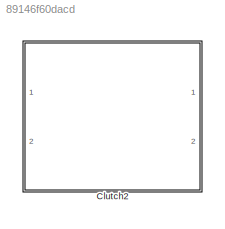
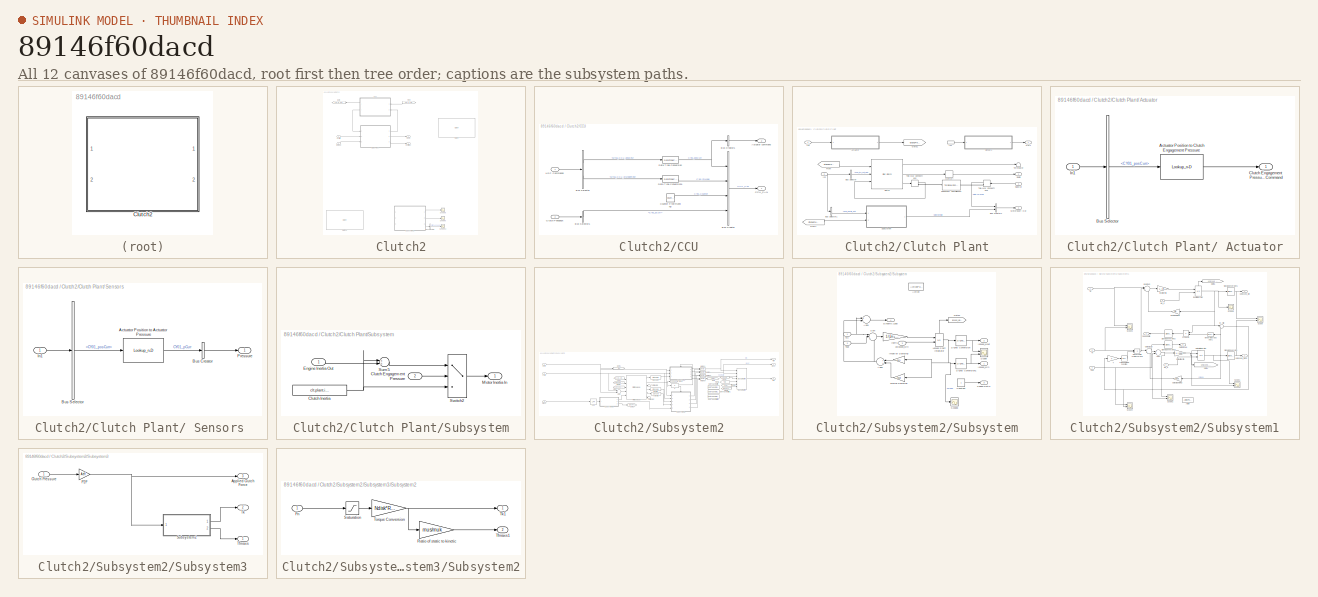
[diagram: thumbnail index - all 12 canvases of the model, root first then tree order]
MODEL slx_89146f60dacd
KIND library
CONFIG AbsTol = auto
CONFIG EnableMultiTasking = off
CONFIG FixedStep = auto
CONFIG MaxStep = auto
CONFIG MinStep = auto
CONFIG RelTol = 1e-3
CONFIG SampleTimeConstraint = Unconstrained
CONFIG Solver = VariableStepAuto
CONFIG SolverName = VariableStepAuto
CONFIG StartTime = 0.0
CONFIG StopTime = 10.0
BLOCK [SubSystem] Clutch2
  AncestorBlock = lib_Clutch_Final/Clutch
  Ports = [2, 2]
  RequestExecContextInheritance = off
  Variant = off
BLOCK [BusSelector] Clutch2/Bus Selector2
  Commented = on
  OutputAsBus = off
  OutputSignals = Cltch.CltchLocked
  Ports = [1, 1]
BLOCK [SubSystem] Clutch2/CCU
  Ports = [2, 2]
  RequestExecContextInheritance = off
  Variant = off
BLOCK [Outport] Clutch2/CCU/Actuator command 
  IconDisplay = Port number
  Port = 2
BLOCK [BusCreator] Clutch2/CCU/Bus Creator
  DisplayOption = bar
  InheritFromInputs = on
  Inputs = 4
  Ports = [4, 1]
BLOCK [BusCreator] Clutch2/CCU/Bus Creator1
  DisplayOption = bar
  InheritFromInputs = on
  Inputs = 1
  Ports = [1, 1]
BLOCK [BusSelector] Clutch2/CCU/Bus Selector
  OutputAsBus = off
  OutputSignals = MY15_CCU_posDes,MY15_CCU_stModeReq
  Ports = [1, 2]
BLOCK [BusSelector] Clutch2/CCU/Bus Selector1
  OutputAsBus = off
  OutputSignals = CY01_pCurr
  Ports = [1, 1]
BLOCK [Outport] Clutch2/CCU/CCU_CAN 
  IconDisplay = Port number
BLOCK [Inport] Clutch2/CCU/Clutch Feedback
  IconDisplay = Port number
  Port = 2
BLOCK [Reference] Clutch2/CCU/Counter Free-Running  REF=simulink/Sources/Counter
Free-Running
  Ports = [0, 1]
  SourceBlock = simulink/Sources/Counter\nFree-Running
  SourceProductBaseCode = SL
  SourceProductName = Simulink
  SourceType = Counter Free-Running
BLOCK [DataTypeConversion] Clutch2/CCU/Data Type Conversion
  RndMeth = Floor
  SaturateOnIntegerOverflow = off
BLOCK [DataTypeConversion] Clutch2/CCU/Data Type Conversion1
  RndMeth = Floor
  SaturateOnIntegerOverflow = off
BLOCK [Inport] Clutch2/CCU/HSC Commands
  IconDisplay = Port number
BLOCK [Reference] Clutch2/Clutch  REF=lib_Clutch_2017a/Clutch
  Commented = on
  Ports = [4, 2]
  SourceBlock = lib_Clutch_2017a/Clutch
BLOCK [SubSystem] Clutch2/Clutch Plant
  Ports = [3, 3]
  RequestExecContextInheritance = off
  Variant = off
BLOCK [SubSystem] Clutch2/Clutch Plant/ Actuator
  Ports = [1, 1]
  RequestExecContextInheritance = off
  Variant = off
BLOCK [Lookup_n-D] Clutch2/Clutch Plant/ Actuator/Actuator Position to Clutch Engagement Pressure
  BreakpointsForDimension1 = [0\n100\n200\n300\n400\n500\n600\n700\n800\n900\n1000\n1100\n1200\n1300\n1400\n1500\n1600\n1700\n1800\n1900\n2000\n2100\n2200\n2300\n2400\n2500\n2600\n2700\n2800\n2900\n3000\n3100\n3200\n3300\n3400\n3500\n3600\n3700\n3800\n3900\n4000\n4100\n4200\n4300\n4400\n4500\n4600\n4700\n4800\n4900\n5000\n5100\n5200\n5300\n5400\n5500\n5600\n5700\n5800\n5900\n6000\n6100\n6200\n6300\n6400\n\n]
  InternalRulePriority = Speed
  NumberOfTableDimensions = 1
  Ports = [1, 1]
  RndMeth = Simplest
  Table = [892800\n892800\n892800\n833280\n773760\n714240\n654720\n595200\n535680\n476160\n416640\n357120\n297600\n238080\n178560\n119040\n59520\n0\n0\n0\n0\n0\n0\n0\n0\n0\n0\n0\n0\n0\n0\n0\n0\n0\n0\n0\n0\n0\n0\n0\n0\n0\n0\n0\n0\n0\n0\n0\n0\n0\n0\n0\n0\n0\n0\n0\n0\n0\n0\n0\n0\n0\n0\n0\n0\n\n\n]
BLOCK [BusSelector] Clutch2/Clutch Plant/ Actuator/Bus Selector
  OutputAsBus = off
  OutputSignals = CY01_posCurr
  Ports = [1, 1]
BLOCK [Outport] Clutch2/Clutch Plant/ Actuator/Clutch Engagement Pressure Command
  IconDisplay = Port number
BLOCK [Inport] Clutch2/Clutch Plant/ Actuator/In1
  IconDisplay = Port number
BLOCK [SubSystem] Clutch2/Clutch Plant/ Sensors 
  Ports = [1, 1]
  RequestExecContextInheritance = off
  Variant = off
BLOCK [Lookup_n-D] Clutch2/Clutch Plant/ Sensors /Actuator Position to Actuator Pressure
  BreakpointsForDimension1 = [0\n300\n400\n500\n600\n700\n800\n900\n1000\n1100\n1200\n1300\n1400\n1500\n1600\n1700\n1800\n1900\n2000\n2100\n2200\n2300\n2400\n2500\n2600\n2700\n2800\n2900\n3000\n3100\n3200\n3300\n3400\n3500\n3600\n3700\n3800\n3900\n4000\n4100\n4200\n4300\n4400\n4500\n4600\n4650\n]
  InternalRulePriority = Speed
  NumberOfTableDimensions = 1
  Ports = [1, 1]
  RndMeth = Simplest
  Table = [0.4\n1.2\n2.6\n4\n5.6\n6.8\n8.6\n10.4\n12.2\n14\n15.8\n17.4\n18.8\n19.6\n20.2\n20\n19.8\n19.6\n19\n18.8\n18.4\n18\n17.8\n17.6\n17.4\n17.2\n17\n16.8\n16.6\n16.6\n16.6\n16.8\n17\n17.2\n17.4\n17.8\n18\n18.4\n18.6\n19\n19.4\n20.4\n21.2\n25.4\n36.4\n41\n]
BLOCK [BusCreator] Clutch2/Clutch Plant/ Sensors /Bus Creator
  DisplayOption = bar
  InheritFromInputs = on
  Inputs = 1
  Ports = [1, 1]
BLOCK [BusSelector] Clutch2/Clutch Plant/ Sensors /Bus Selector
  OutputAsBus = off
  OutputSignals = CY01_posCurr
  Ports = [1, 1]
BLOCK [Inport] Clutch2/Clutch Plant/ Sensors /In1
  IconDisplay = Port number
BLOCK [Outport] Clutch2/Clutch Plant/ Sensors /Pressure
  IconDisplay = Port number
BLOCK [BusCreator] Clutch2/Clutch Plant/Bus Creator1
  DisplayOption = bar
  InheritFromInputs = on
  Inputs = 2
  Ports = [2, 1]
BLOCK [BusSelector] Clutch2/Clutch Plant/Bus Selector
  OutputAsBus = off
  OutputSignals = eng_trq_out_Nm
  Ports = [1, 1]
BLOCK [BusSelector] Clutch2/Clutch Plant/Bus Selector1
  OutputAsBus = off
  OutputSignals = eng_inertia_out
  Ports = [1, 1]
BLOCK [Reference] Clutch2/Clutch Plant/Clutch  REF=autolibcoupling/Disc Clutch
  Ports = [3, 3]
  SourceBlock = autolibcoupling/Disc Clutch
  SourceProductBaseCode = PW
  SourceProductName = Powertrain Blockset
  SourceType = Disc Clutch
BLOCK [Reference] Clutch2/Clutch Plant/Driveshaft Compliance1  REF=autolibcoupling/Torsional Compliance
  Ports = [0, 0, 0, 0, 0, 1, 1]
  SourceBlock = autolibcoupling/Torsional Compliance
  SourceProductName = Powertrain Blockset
  SourceType = Torsional Compliance
BLOCK [From] Clutch2/Clutch Plant/From
  GotoTag = CltEngPressCmd
  TagVisibility = global
BLOCK [From] Clutch2/Clutch Plant/From1
  GotoTag = CltEngPressCmd
  TagVisibility = global
BLOCK [Goto] Clutch2/Clutch Plant/Goto1
  GotoTag = CltEngPressCmd
  TagVisibility = global
BLOCK [Inport] Clutch2/Clutch Plant/In1
  IconDisplay = Port number
BLOCK [Inport] Clutch2/Clutch Plant/In2
  IconDisplay = Port number
  Port = 2
BLOCK [InportShadow] Clutch2/Clutch Plant/In4
  IconDisplay = Port number
BLOCK [Memory] Clutch2/Clutch Plant/Memory
BLOCK [Outport] Clutch2/Clutch Plant/MotorShaft Out
  IconDisplay = Port number
  Port = 3
BLOCK [Outport] Clutch2/Clutch Plant/Out1
  IconDisplay = Port number
BLOCK [Inport] Clutch2/Clutch Plant/SpdOut
  IconDisplay = Port number
  Port = 3
BLOCK [Outport] Clutch2/Clutch Plant/Spdin
  IconDisplay = Port number
  Port = 2
BLOCK [SubSystem] Clutch2/Clutch Plant/Subsystem
  Ports = [2, 1]
  RequestExecContextInheritance = off
  Variant = off
BLOCK [Inport] Clutch2/Clutch Plant/Subsystem/Clutch Engagement Pressure
  IconDisplay = Port number
  Port = 2
BLOCK [Constant] Clutch2/Clutch Plant/Subsystem/Clutch Inertia
  Value = clt.plant.init.inertia
BLOCK [Inport] Clutch2/Clutch Plant/Subsystem/Engine Inertia Out
  IconDisplay = Port number
BLOCK [Outport] Clutch2/Clutch Plant/Subsystem/Motor Inertia In
  IconDisplay = Port number
BLOCK [Sum] Clutch2/Clutch Plant/Subsystem/Sum5
  IconShape = round
  Inputs = ++|
  Ports = [2, 1]
BLOCK [Switch] Clutch2/Clutch Plant/Subsystem/Switch2
  Criteria = u2 > Threshold
BLOCK [Terminator] Clutch2/Clutch Plant/Terminator
BLOCK [TwoWayConnection] Clutch2/Clutch Plant/Two-Way Connection2
  Ports = [1, 1, 0, 0, 0, 0, 1]
BLOCK [TwoWayConnection] Clutch2/Clutch Plant/Two-Way Connection3
  Ports = [1, 1, 0, 0, 0, 0, 1]
BLOCK [Reference] Clutch2/Clutch1  REF=lib_Clutch/Clutch
  Commented = on
  Ports = [4, 2]
  SourceBlock = lib_Clutch/Clutch
BLOCK [From] Clutch2/From
  GotoTag = HCU_to_EBCAN
  TagVisibility = global
BLOCK [Goto] Clutch2/Goto
  GotoTag = CCU_to_HCU
  TagVisibility = global
BLOCK [Inport] Clutch2/MotSpd
  IconDisplay = Port number
  Port = 2
BLOCK [Scope] Clutch2/Scope10
  Commented = on
  NumInputPorts = 1
  Ports = [1]
  ScopeSpecificationString = Simulink.scopes.TimeScopeBlockCfg('CurrentConfiguration', extmgr.ConfigurationSet(extmgr.Configuration('Core','General UI',true),extmgr.Configuration('Core','Source UI',true),extmgr.Configuration('Sources','WiredSimulink',true,'DataLoggingVariableName','ScopeData5'),extmgr.Configuration('Visuals','Time Domain',true,'SerializedDisplays',{struct('MinYLimReal','-0.125','MaxYLimReal','1.125','YLabelRe...<+1360ch>
BLOCK [Scope] Clutch2/Scope8
  Commented = on
  NumInputPorts = 1
  Ports = [1]
  ScopeSpecificationString = Simulink.scopes.TimeScopeBlockCfg('CurrentConfiguration', extmgr.ConfigurationSet(extmgr.Configuration('Core','General UI',true),extmgr.Configuration('Core','Source UI',true),extmgr.Configuration('Sources','WiredSimulink',true,'DataLoggingVariableName','ScopeData3'),extmgr.Configuration('Visuals','Time Domain',true,'SerializedDisplays',{struct('MinYLimReal','-0.12495','MaxYLimReal','1.12458','YLab...<+1446ch>
BLOCK [Scope] Clutch2/Scope9
  Commented = on
  NumInputPorts = 1
  Ports = [1]
  ScopeSpecificationString = Simulink.scopes.TimeScopeBlockCfg('CurrentConfiguration', extmgr.ConfigurationSet(extmgr.Configuration('Core','General UI',true),extmgr.Configuration('Core','Source UI',true),extmgr.Configuration('Sources','WiredSimulink',true,'DataLoggingVariableName','ScopeData4'),extmgr.Configuration('Visuals','Time Domain',true,'SerializedDisplays',{struct('MinYLimReal','-95.10978','MaxYLimReal','587.15369','Y...<+1409ch>
BLOCK [Inport] Clutch2/ShaftIn
  IconDisplay = Port number
BLOCK [Outport] Clutch2/ShaftOut
  IconDisplay = Port number
BLOCK [Outport] Clutch2/SpdIn
  IconDisplay = Port number
  Port = 2
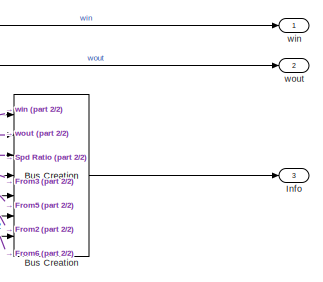
[diagram: Clutch2/Subsystem2 - part 1/2, middle right region]
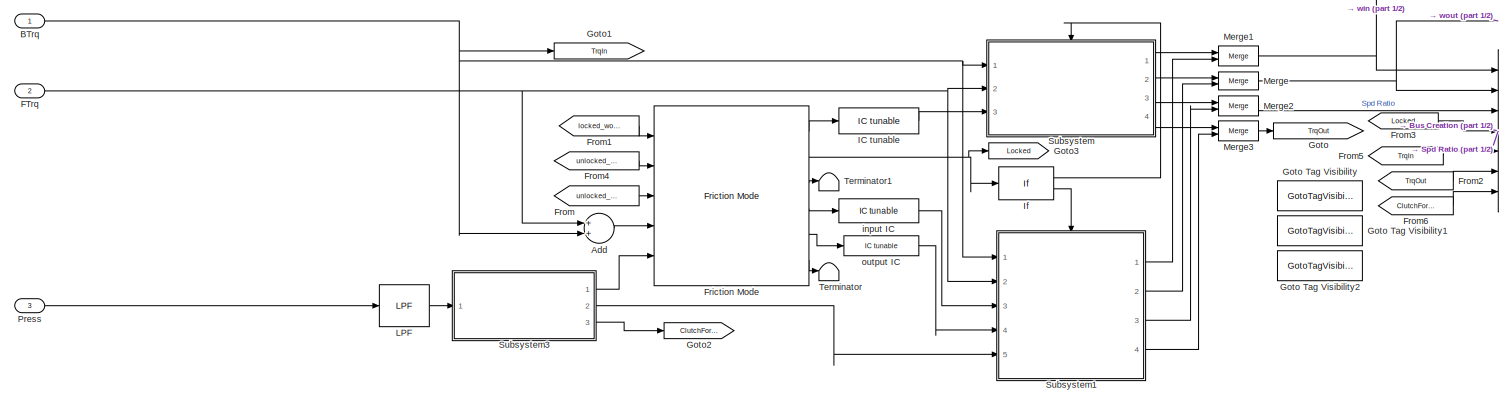
[diagram: Clutch2/Subsystem2 - part 2/2, most of the canvas]
BLOCK [SubSystem] Clutch2/Subsystem2
  Commented = on
  Ports = [3, 3]
  RequestExecContextInheritance = off
  Variant = off
BLOCK [Sum] Clutch2/Subsystem2/Add
  InputSameDT = off
  OutDataTypeStr = Inherit: Inherit via internal rule
  Ports = [2, 1]
  SaturateOnIntegerOverflow = off
BLOCK [Inport] Clutch2/Subsystem2/BTrq
  IconDisplay = Port number
BLOCK [Reference] Clutch2/Subsystem2/Bus Creation  REF=autolibdrivetraincommon/Dry Clutch/Bus Creation
  Ports = [7, 1]
  SourceBlock = autolibdrivetraincommon/Dry Clutch/Bus Creation
  SourceProductBaseCode = PW
  SourceProductName = Powertrain Blockset
  SourceType = SubSystem
BLOCK [Inport] Clutch2/Subsystem2/FTrq
  IconDisplay = Port number
  Port = 2
BLOCK [Reference] Clutch2/Subsystem2/Friction Mode  REF=autolibdrivetraincommon/Dry Clutch/Friction Mode
  Ports = [5, 6]
  SourceBlock = autolibdrivetraincommon/Dry Clutch/Friction Mode
  SourceProductBaseCode = PW
  SourceProductName = Powertrain Blockset
  SourceType = SubSystem
BLOCK [From] Clutch2/Subsystem2/From
  GotoTag = unlocked_win
  TagVisibility = scoped
BLOCK [From] Clutch2/Subsystem2/From1
  GotoTag = locked_wout
  TagVisibility = scoped
BLOCK [From] Clutch2/Subsystem2/From2
  GotoTag = TrqOut
BLOCK [From] Clutch2/Subsystem2/From3
  GotoTag = Locked
BLOCK [From] Clutch2/Subsystem2/From4
  GotoTag = unlocked_wout
  TagVisibility = scoped
BLOCK [From] Clutch2/Subsystem2/From5
  GotoTag = TrqIn
BLOCK [From] Clutch2/Subsystem2/From6
  GotoTag = ClutchForce
BLOCK [Goto] Clutch2/Subsystem2/Goto
  GotoTag = TrqOut
BLOCK [GotoTagVisibility] Clutch2/Subsystem2/Goto Tag Visibility
  GotoTag = locked_wout
BLOCK [GotoTagVisibility] Clutch2/Subsystem2/Goto Tag Visibility1
  GotoTag = unlocked_wout
BLOCK [GotoTagVisibility] Clutch2/Subsystem2/Goto Tag Visibility2
  GotoTag = unlocked_win
BLOCK [Goto] Clutch2/Subsystem2/Goto1
  GotoTag = TrqIn
BLOCK [Goto] Clutch2/Subsystem2/Goto2
  GotoTag = ClutchForce
BLOCK [Goto] Clutch2/Subsystem2/Goto3
  GotoTag = Locked
BLOCK [Reference] Clutch2/Subsystem2/IC tunable  REF=autolibutils/IC tunable
  Ports = [1, 1]
  SourceBlock = autolibutils/IC tunable
  SourceProductBaseCode = PW
  SourceProductName = Powertrain Blockset
  SourceType = Initial Condition - Tunable
BLOCK [If] Clutch2/Subsystem2/If
  IfExpression = u1 ~= 0
  Ports = [1, 2]
BLOCK [Outport] Clutch2/Subsystem2/Info
  IconDisplay = Port number
  Port = 3
BLOCK [Reference] Clutch2/Subsystem2/LPF  REF=autolibdrivetraincommon/Dry Clutch/LPF
  Ports = [1, 1]
  SourceBlock = autolibdrivetraincommon/Dry Clutch/LPF
  SourceProductBaseCode = PW
  SourceProductName = Powertrain Blockset
  SourceType = SubSystem
BLOCK [Merge] Clutch2/Subsystem2/Merge
  Ports = [2, 1]
BLOCK [Merge] Clutch2/Subsystem2/Merge1
  Ports = [2, 1]
BLOCK [Merge] Clutch2/Subsystem2/Merge2
  Ports = [2, 1]
BLOCK [Merge] Clutch2/Subsystem2/Merge3
  Ports = [2, 1]
BLOCK [Inport] Clutch2/Subsystem2/Press
  IconDisplay = Port number
  Port = 3
BLOCK [SubSystem] Clutch2/Subsystem2/Subsystem
  Ports = [3, 4, 0, 0, 0, 0, 0, 1]
  RequestExecContextInheritance = off
  Variant = off
BLOCK [ActionPort] Clutch2/Subsystem2/Subsystem/Action
  InitializeStates = reset
BLOCK [Sum] Clutch2/Subsystem2/Subsystem/Add1
  InputSameDT = off
  Inputs = +-
  OutDataTypeStr = Inherit: Inherit via internal rule
  Ports = [2, 1]
  SaturateOnIntegerOverflow = off
BLOCK [Sum] Clutch2/Subsystem2/Subsystem/Add2
  InputSameDT = off
  OutDataTypeStr = Inherit: Inherit via internal rule
  Ports = [2, 1]
  SaturateOnIntegerOverflow = off
BLOCK [Constant] Clutch2/Subsystem2/Subsystem/Constant
BLOCK [Outport] Clutch2/Subsystem2/Subsystem/Dynamic Load
  IconDisplay = Port number
  InitialOutput = 0
  Port = 4
BLOCK [Goto] Clutch2/Subsystem2/Subsystem/Goto4
  GotoTag = locked_wout
  TagVisibility = scoped
BLOCK [Gain] Clutch2/Subsystem2/Subsystem/Impeller Damping
  Gain = bin
BLOCK [Gain] Clutch2/Subsystem2/Subsystem/Inertia
  Gain = 1/(Jin+Jout)
BLOCK [Integrator] Clutch2/Subsystem2/Subsystem/Locked Shaft Integrator
  InitialConditionSource = external
  LimitOutput = on
  LowerSaturationLimit = -maxAbsSpd
  Ports = [2, 1, 0, 0, 1]
  ShowStatePort = on
  UpperSaturationLimit = maxAbsSpd
  ZeroCross = off
BLOCK [Scope] Clutch2/Subsystem2/Subsystem/Scope
  NumInputPorts = 2
  Ports = [2]
  ScopeSpecificationString = Simulink.scopes.TimeScopeBlockCfg('CurrentConfiguration', extmgr.ConfigurationSet(extmgr.Configuration('Core','General UI',true),extmgr.Configuration('Core','Source UI',true),extmgr.Configuration('Sources','WiredSimulink',true,'DataLoggingVariableName','ScopeData3'),extmgr.Configuration('Visuals','Time Domain',true,'SerializedDisplays',{struct('MinYLimReal','-0.12787','MaxYLimReal','1.15082','YLab...<+2085ch>
BLOCK [Scope] Clutch2/Subsystem2/Subsystem/Scope8
  NumInputPorts = 1
  Ports = [1]
  ScopeSpecificationString = Simulink.scopes.TimeScopeBlockCfg('CurrentConfiguration', extmgr.ConfigurationSet(extmgr.Configuration('Core','General UI',true),extmgr.Configuration('Core','Source UI',true),extmgr.Configuration('Sources','WiredSimulink',true,'DataLoggingVariableName','ScopeData1'),extmgr.Configuration('Visuals','Time Domain',true),extmgr.Configuration('Tools','Plot Navigation',true),extmgr.Configuration('Tools',...<+40ch>
BLOCK [SignalConversion] Clutch2/Subsystem2/Subsystem/Signal Conversion
  OverrideOpt = off
BLOCK [SignalConversion] Clutch2/Subsystem2/Subsystem/Signal Conversion1
  OverrideOpt = off
BLOCK [Outport] Clutch2/Subsystem2/Subsystem/Speed Ratio
  IconDisplay = Port number
  InitialOutput = 1
  Port = 3
BLOCK [Sum] Clutch2/Subsystem2/Subsystem/Sum
  IconShape = round
  Inputs = ||++-
  Ports = [3, 1]
BLOCK [Inport] Clutch2/Subsystem2/Subsystem/Tin
  IconDisplay = Port number
BLOCK [Inport] Clutch2/Subsystem2/Subsystem/Tout
  IconDisplay = Port number
  Port = 2
BLOCK [Gain] Clutch2/Subsystem2/Subsystem/Turbine Damping
  Gain = bout
BLOCK [Outport] Clutch2/Subsystem2/Subsystem/locked_win
  IconDisplay = Port number
  InitialOutput = win_o
BLOCK [Outport] Clutch2/Subsystem2/Subsystem/locked_wout
  IconDisplay = Port number
  InitialOutput = win_o
  Port = 2
BLOCK [Inport] Clutch2/Subsystem2/Subsystem/unlocked_win
  IconDisplay = Port number
  Port = 3
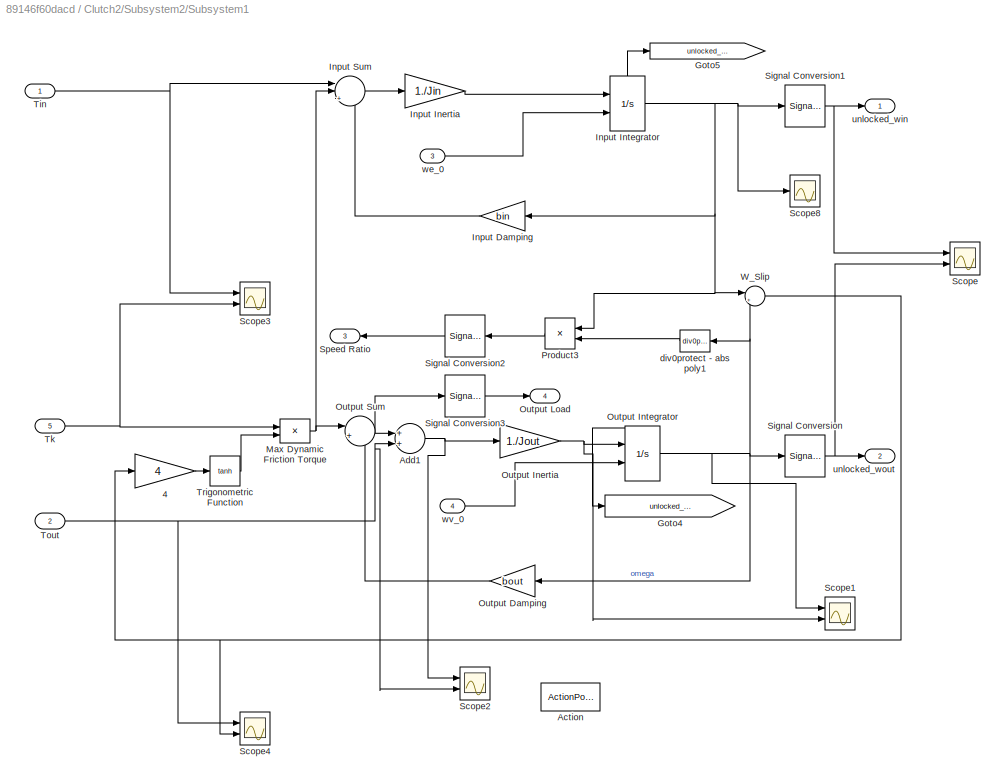
BLOCK [SubSystem] Clutch2/Subsystem2/Subsystem1
  Ports = [5, 4, 0, 0, 0, 0, 0, 1]
  RequestExecContextInheritance = off
  Variant = off
BLOCK [Gain] Clutch2/Subsystem2/Subsystem1/4
  Gain = 4
BLOCK [ActionPort] Clutch2/Subsystem2/Subsystem1/Action
  InitializeStates = reset
BLOCK [Sum] Clutch2/Subsystem2/Subsystem1/Add1
  InputSameDT = off
  OutDataTypeStr = Inherit: Inherit via internal rule
  Ports = [2, 1]
  SaturateOnIntegerOverflow = off
BLOCK [Goto] Clutch2/Subsystem2/Subsystem1/Goto4
  GotoTag = unlocked_wout
  TagVisibility = scoped
BLOCK [Goto] Clutch2/Subsystem2/Subsystem1/Goto5
  GotoTag = unlocked_win
  TagVisibility = scoped
BLOCK [Gain] Clutch2/Subsystem2/Subsystem1/Input Damping
  Gain = bin
BLOCK [Gain] Clutch2/Subsystem2/Subsystem1/Input Inertia
  Gain = 1./Jin
BLOCK [Integrator] Clutch2/Subsystem2/Subsystem1/Input Integrator
  InitialConditionSource = external
  LimitOutput = on
  LowerSaturationLimit = -maxAbsSpd
  Ports = [2, 1, 0, 0, 1]
  ShowStatePort = on
  UpperSaturationLimit = maxAbsSpd
BLOCK [Sum] Clutch2/Subsystem2/Subsystem1/Input Sum
  IconShape = round
  Inputs = ||+--
  Ports = [3, 1]
BLOCK [Product] Clutch2/Subsystem2/Subsystem1/Max Dynamic Friction Torque
  Ports = [2, 1]
BLOCK [Gain] Clutch2/Subsystem2/Subsystem1/Output Damping
  Gain = bout
BLOCK [Gain] Clutch2/Subsystem2/Subsystem1/Output Inertia
  Gain = 1./Jout
BLOCK [Integrator] Clutch2/Subsystem2/Subsystem1/Output Integrator
  InitialConditionSource = external
  LimitOutput = on
  LowerSaturationLimit = -maxAbsSpd
  Ports = [2, 1, 0, 0, 1]
  ShowStatePort = on
  UpperSaturationLimit = maxAbsSpd
BLOCK [Outport] Clutch2/Subsystem2/Subsystem1/Output Load
  IconDisplay = Port number
  InitialOutput = 0
  Port = 4
BLOCK [Sum] Clutch2/Subsystem2/Subsystem1/Output Sum
  IconShape = round
  Inputs = |+-
  Ports = [2, 1]
BLOCK [Product] Clutch2/Subsystem2/Subsystem1/Product3
  InputSameDT = off
  Inputs = */
  OutDataTypeStr = Inherit: Inherit via internal rule
  Ports = [2, 1]
  RndMeth = Floor
  SaturateOnIntegerOverflow = off
BLOCK [Scope] Clutch2/Subsystem2/Subsystem1/Scope
  NumInputPorts = 2
  Ports = [2]
  ScopeSpecificationString = Simulink.scopes.TimeScopeBlockCfg('CurrentConfiguration', extmgr.ConfigurationSet(extmgr.Configuration('Core','General UI',true),extmgr.Configuration('Core','Source UI',true),extmgr.Configuration('Sources','WiredSimulink',true,'DataLoggingVariableName','ScopeData4'),extmgr.Configuration('Visuals','Time Domain',true,'SerializedDisplays',{struct('MinYLimReal','0.78345','MaxYLimReal','1.02406','YLabe...<+2089ch>
BLOCK [Scope] Clutch2/Subsystem2/Subsystem1/Scope1
  NumInputPorts = 2
  Ports = [2]
  ScopeSpecificationString = Simulink.scopes.TimeScopeBlockCfg('CurrentConfiguration', extmgr.ConfigurationSet(extmgr.Configuration('Core','General UI',true),extmgr.Configuration('Core','Source UI',true),extmgr.Configuration('Sources','WiredSimulink',true,'DataLoggingVariableName','ScopeData5'),extmgr.Configuration('Visuals','Time Domain',true,'SerializedDisplays',{struct('MinYLimReal','-40.80687','MaxYLimReal','377.26185','Y...<+2082ch>
BLOCK [Scope] Clutch2/Subsystem2/Subsystem1/Scope2
  NumInputPorts = 2
  Ports = [2]
  ScopeSpecificationString = Simulink.scopes.TimeScopeBlockCfg('CurrentConfiguration', extmgr.ConfigurationSet(extmgr.Configuration('Core','General UI',true),extmgr.Configuration('Core','Source UI',true),extmgr.Configuration('Sources','WiredSimulink',true,'DataLoggingVariableName','ScopeData6'),extmgr.Configuration('Visuals','Time Domain',true,'SerializedDisplays',{struct('MinYLimReal','-224.04847','MaxYLimReal','231.69884','...<+2071ch>
BLOCK [Scope] Clutch2/Subsystem2/Subsystem1/Scope3
  NumInputPorts = 2
  Ports = [2]
  ScopeSpecificationString = Simulink.scopes.TimeScopeBlockCfg('CurrentConfiguration', extmgr.ConfigurationSet(extmgr.Configuration('Core','General UI',true),extmgr.Configuration('Core','Source UI',true),extmgr.Configuration('Sources','WiredSimulink',true,'DataLoggingVariableName','ScopeData7'),extmgr.Configuration('Visuals','Time Domain',true,'SerializedDisplays',{struct('MinYLimReal','-1.00000','MaxYLimReal','1.00000','YLab...<+2056ch>
BLOCK [Scope] Clutch2/Subsystem2/Subsystem1/Scope4
  NumInputPorts = 2
  Ports = [2]
  ScopeSpecificationString = Simulink.scopes.TimeScopeBlockCfg('CurrentConfiguration', extmgr.ConfigurationSet(extmgr.Configuration('Core','General UI',true),extmgr.Configuration('Core','Source UI',true),extmgr.Configuration('Sources','WiredSimulink',true,'DataLoggingVariableName','ScopeData8'),extmgr.Configuration('Visuals','Time Domain',true,'SerializedDisplays',{struct('MinYLimReal','-224.12423','MaxYLimReal','232.45271','...<+2072ch>
BLOCK [Scope] Clutch2/Subsystem2/Subsystem1/Scope8
  NumInputPorts = 1
  Ports = [1]
  ScopeSpecificationString = Simulink.scopes.TimeScopeBlockCfg('CurrentConfiguration', extmgr.ConfigurationSet(extmgr.Configuration('Core','General UI',true),extmgr.Configuration('Core','Source UI',true),extmgr.Configuration('Sources','WiredSimulink',true,'DataLoggingVariableName','ScopeData2'),extmgr.Configuration('Visuals','Time Domain',true),extmgr.Configuration('Tools','Plot Navigation',true),extmgr.Configuration('Tools',...<+40ch>
BLOCK [SignalConversion] Clutch2/Subsystem2/Subsystem1/Signal Conversion
  OverrideOpt = off
BLOCK [SignalConversion] Clutch2/Subsystem2/Subsystem1/Signal Conversion1
  OverrideOpt = off
BLOCK [SignalConversion] Clutch2/Subsystem2/Subsystem1/Signal Conversion2
  OverrideOpt = off
BLOCK [SignalConversion] Clutch2/Subsystem2/Subsystem1/Signal Conversion3
  OverrideOpt = off
BLOCK [Outport] Clutch2/Subsystem2/Subsystem1/Speed Ratio
  IconDisplay = Port number
  InitialOutput = 0
  Port = 3
BLOCK [Inport] Clutch2/Subsystem2/Subsystem1/Tin
  IconDisplay = Port number
BLOCK [Inport] Clutch2/Subsystem2/Subsystem1/Tk
  IconDisplay = Port number
  Port = 5
BLOCK [Inport] Clutch2/Subsystem2/Subsystem1/Tout
  IconDisplay = Port number
  Port = 2
BLOCK [Trigonometry] Clutch2/Subsystem2/Subsystem1/Trigonometric Function
  Operator = tanh
  Ports = [1, 1]
BLOCK [Sum] Clutch2/Subsystem2/Subsystem1/W_Slip
  IconShape = round
  Inputs = |+-
  Ports = [2, 1]
BLOCK [Reference] Clutch2/Subsystem2/Subsystem1/div0protect - abs poly1  REF=autolibutils/div0protect - abs poly
  Ports = [1, 1]
  SourceBlock = autolibutils/div0protect - abs poly
  SourceProductBaseCode = PW
  SourceProductName = Powertrain Blockset
BLOCK [Outport] Clutch2/Subsystem2/Subsystem1/unlocked_win
  IconDisplay = Port number
  InitialOutput = win_o
BLOCK [Outport] Clutch2/Subsystem2/Subsystem1/unlocked_wout
  IconDisplay = Port number
  InitialOutput = wout_o
  Port = 2
BLOCK [Inport] Clutch2/Subsystem2/Subsystem1/we_0
  IconDisplay = Port number
  Port = 3
BLOCK [Inport] Clutch2/Subsystem2/Subsystem1/wv_0
  IconDisplay = Port number
  Port = 4
BLOCK [SubSystem] Clutch2/Subsystem2/Subsystem3
  Ports = [1, 3]
  RequestExecContextInheritance = off
  Variant = off
BLOCK [Outport] Clutch2/Subsystem2/Subsystem3/Applied Clutch Force
  IconDisplay = Port number
  Port = 3
BLOCK [Inport] Clutch2/Subsystem2/Subsystem3/Clutch Pressure
  IconDisplay = Port number
BLOCK [Gain] Clutch2/Subsystem2/Subsystem3/P2F
  Gain = Aeff
  OutDataTypeStr = Inherit: Inherit via internal rule
  ParamDataTypeStr = Inherit: Inherit via internal rule
  SaturateOnIntegerOverflow = off
BLOCK [SubSystem] Clutch2/Subsystem2/Subsystem3/Subsystem2
  Ports = [1, 2]
  RequestExecContextInheritance = off
  Variant = off
BLOCK [Inport] Clutch2/Subsystem2/Subsystem3/Subsystem2/Fn
  IconDisplay = Port number
BLOCK [Gain] Clutch2/Subsystem2/Subsystem3/Subsystem2/Ratio of static to kinetic
  Gain = mus/muk
BLOCK [Saturate] Clutch2/Subsystem2/Subsystem3/Subsystem2/Saturation
  InputPortMap = u0
  LowerLimit = eps
  Ports = [1, 1]
  UpperLimit = inf
BLOCK [Outport] Clutch2/Subsystem2/Subsystem3/Subsystem2/Tfmaxs1
  IconDisplay = Port number
  InitialOutput = 0
  Port = 2
BLOCK [Outport] Clutch2/Subsystem2/Subsystem3/Subsystem2/Tk1
  IconDisplay = Port number
  InitialOutput = 0
BLOCK [Gain] Clutch2/Subsystem2/Subsystem3/Subsystem2/Torque Conversion
  Gain = Ndisk*Reff*muk
BLOCK [Outport] Clutch2/Subsystem2/Subsystem3/Tfmaxs
  IconDisplay = Port number
BLOCK [Outport] Clutch2/Subsystem2/Subsystem3/Tk
  IconDisplay = Port number
  Port = 2
BLOCK [Terminator] Clutch2/Subsystem2/Terminator
BLOCK [Terminator] Clutch2/Subsystem2/Terminator1
BLOCK [Reference] Clutch2/Subsystem2/input IC  REF=autolibutils/IC tunable
  Ports = [1, 1]
  SourceBlock = autolibutils/IC tunable
  SourceProductBaseCode = PW
  SourceProductName = Powertrain Blockset
  SourceType = Initial Condition - Tunable
BLOCK [Reference] Clutch2/Subsystem2/output IC  REF=autolibutils/IC tunable
  Ports = [1, 1]
  SourceBlock = autolibutils/IC tunable
  SourceProductBaseCode = PW
  SourceProductName = Powertrain Blockset
  SourceType = Initial Condition - Tunable
BLOCK [Outport] Clutch2/Subsystem2/win
  IconDisplay = Port number
BLOCK [Outport] Clutch2/Subsystem2/wout
  IconDisplay = Port number
  Port = 2
LINE Clutch2/Bus Selector2:1 -> Clutch2/Scope10:1
LINE Clutch2/CCU/Bus Creator1:1 -> Clutch2/CCU/Actuator command :1
LINE Clutch2/CCU/Bus Creator:1 -> Clutch2/CCU/CCU_CAN :1
LINE Clutch2/CCU/Bus Selector1:1 -> Clutch2/CCU/Bus Creator:4
LINE Clutch2/CCU/Bus Selector:1 -> Clutch2/CCU/Data Type Conversion:1
LINE Clutch2/CCU/Bus Selector:2 -> Clutch2/CCU/Data Type Conversion1:1
LINE Clutch2/CCU/Clutch Feedback:1 -> Clutch2/CCU/Bus Selector1:1
LINE Clutch2/CCU/Counter Free-Running:1 -> Clutch2/CCU/Bus Creator:3
LINE Clutch2/CCU/Data Type Conversion1:1 -> Clutch2/CCU/Bus Creator:2
NET Clutch2/CCU/Data Type Conversion:1 -> Clutch2/CCU/Bus Creator1:1, Clutch2/CCU/Bus Creator:1
LINE Clutch2/CCU/HSC Commands:1 -> Clutch2/CCU/Bus Selector:1
LINE Clutch2/CCU:1 -> Clutch2/Goto:1
LINE Clutch2/CCU:2 -> Clutch2/Clutch Plant:1
LINE Clutch2/Clutch Plant/ Actuator/Actuator Position to Clutch Engagement Pressure:1 -> Clutch2/Clutch Plant/ Actuator/Clutch Engagement Pressure Command:1
LINE Clutch2/Clutch Plant/ Actuator/Bus Selector:1 -> Clutch2/Clutch Plant/ Actuator/Actuator Position to Clutch Engagement Pressure:1
LINE Clutch2/Clutch Plant/ Actuator/In1:1 -> Clutch2/Clutch Plant/ Actuator/Bus Selector:1
LINE Clutch2/Clutch Plant/ Actuator:1 -> Clutch2/Clutch Plant/Goto1:1
LINE Clutch2/Clutch Plant/ Sensors /Actuator Position to Actuator Pressure:1 -> Clutch2/Clutch Plant/ Sensors /Bus Creator:1
LINE Clutch2/Clutch Plant/ Sensors /Bus Creator:1 -> Clutch2/Clutch Plant/ Sensors /Pressure:1
LINE Clutch2/Clutch Plant/ Sensors /Bus Selector:1 -> Clutch2/Clutch Plant/ Sensors /Actuator Position to Actuator Pressure:1
LINE Clutch2/Clutch Plant/ Sensors /In1:1 -> Clutch2/Clutch Plant/ Sensors /Bus Selector:1
LINE Clutch2/Clutch Plant/ Sensors :1 -> Clutch2/Clutch Plant/Out1:1
LINE Clutch2/Clutch Plant/Bus Creator1:1 -> Clutch2/Clutch Plant/MotorShaft Out:1
LINE Clutch2/Clutch Plant/Bus Selector1:1 -> Clutch2/Clutch Plant/Subsystem:1
LINE Clutch2/Clutch Plant/Bus Selector:1 -> Clutch2/Clutch Plant/Clutch:2
LINE Clutch2/Clutch Plant/Clutch:1 -> Clutch2/Clutch Plant/Terminator:1
LINE Clutch2/Clutch Plant/Clutch:2 -> Clutch2/Clutch Plant/Memory:1
LINE Clutch2/Clutch Plant/Clutch:3 -> Clutch2/Clutch Plant/Two-Way Connection2:1
LINE Clutch2/Clutch Plant/From1:1 -> Clutch2/Clutch Plant/Subsystem:2
LINE Clutch2/Clutch Plant/From:1 -> Clutch2/Clutch Plant/Clutch:1
LINE Clutch2/Clutch Plant/In1:1 -> Clutch2/Clutch Plant/ Actuator:1
NET Clutch2/Clutch Plant/In2:1 -> Clutch2/Clutch Plant/Bus Selector1:1, Clutch2/Clutch Plant/Bus Selector:1
LINE Clutch2/Clutch Plant/In4:1 -> Clutch2/Clutch Plant/ Sensors :1
LINE Clutch2/Clutch Plant/Memory:1 -> Clutch2/Clutch Plant/Spdin:1
LINE Clutch2/Clutch Plant/SpdOut:1 -> Clutch2/Clutch Plant/Two-Way Connection3:1
LINE Clutch2/Clutch Plant/Subsystem/Clutch Engagement Pressure:1 -> Clutch2/Clutch Plant/Subsystem/Switch2:2
NET Clutch2/Clutch Plant/Subsystem/Clutch Inertia:1 -> Clutch2/Clutch Plant/Subsystem/Sum5:1, Clutch2/Clutch Plant/Subsystem/Switch2:3
LINE Clutch2/Clutch Plant/Subsystem/Engine Inertia Out:1 -> Clutch2/Clutch Plant/Subsystem/Sum5:2
LINE Clutch2/Clutch Plant/Subsystem/Sum5:1 -> Clutch2/Clutch Plant/Subsystem/Switch2:1
LINE Clutch2/Clutch Plant/Subsystem/Switch2:1 -> Clutch2/Clutch Plant/Subsystem/Motor Inertia In:1
LINE Clutch2/Clutch Plant/Subsystem:1 -> Clutch2/Clutch Plant/Bus Creator1:2
LINE Clutch2/Clutch Plant/Two-Way Connection2:1 -> Clutch2/Clutch Plant/Clutch:3
LINE Clutch2/Clutch Plant/Two-Way Connection3:1 -> Clutch2/Clutch Plant/Bus Creator1:1
LINE Clutch2/Clutch Plant:1 -> Clutch2/CCU:2
LINE Clutch2/Clutch Plant:2 -> Clutch2/SpdIn:1
LINE Clutch2/Clutch Plant:3 -> Clutch2/ShaftOut:1
LINE Clutch2/From:1 -> Clutch2/CCU:1
LINE Clutch2/MotSpd:1 -> Clutch2/Clutch Plant:3
LINE Clutch2/ShaftIn:1 -> Clutch2/Clutch Plant:2
LINE Clutch2/Subsystem2/Add:1 -> Clutch2/Subsystem2/Friction Mode:4
NET Clutch2/Subsystem2/BTrq:1 -> Clutch2/Subsystem2/Add:2, Clutch2/Subsystem2/Goto1:1, Clutch2/Subsystem2/Subsystem1:1, Clutch2/Subsystem2/Subsystem:1
LINE Clutch2/Subsystem2/Bus Creation:1 -> Clutch2/Subsystem2/Info:1
NET Clutch2/Subsystem2/FTrq:1 -> Clutch2/Subsystem2/Add:1, Clutch2/Subsystem2/Subsystem1:2, Clutch2/Subsystem2/Subsystem:2
LINE Clutch2/Subsystem2/Friction Mode:1 -> Clutch2/Subsystem2/IC tunable:1
NET Clutch2/Subsystem2/Friction Mode:2 -> Clutch2/Subsystem2/Goto3:1, Clutch2/Subsystem2/If:1
LINE Clutch2/Subsystem2/Friction Mode:3 -> Clutch2/Subsystem2/Terminator1:1
LINE Clutch2/Subsystem2/Friction Mode:4 -> Clutch2/Subsystem2/input IC:1
LINE Clutch2/Subsystem2/Friction Mode:5 -> Clutch2/Subsystem2/output IC:1
LINE Clutch2/Subsystem2/Friction Mode:6 -> Clutch2/Subsystem2/Terminator:1
LINE Clutch2/Subsystem2/From1:1 -> Clutch2/Subsystem2/Friction Mode:1
LINE Clutch2/Subsystem2/From2:1 -> Clutch2/Subsystem2/Bus Creation:6
LINE Clutch2/Subsystem2/From3:1 -> Clutch2/Subsystem2/Bus Creation:4
LINE Clutch2/Subsystem2/From4:1 -> Clutch2/Subsystem2/Friction Mode:2
LINE Clutch2/Subsystem2/From5:1 -> Clutch2/Subsystem2/Bus Creation:5
LINE Clutch2/Subsystem2/From6:1 -> Clutch2/Subsystem2/Bus Creation:7
LINE Clutch2/Subsystem2/From:1 -> Clutch2/Subsystem2/Friction Mode:3
LINE Clutch2/Subsystem2/IC tunable:1 -> Clutch2/Subsystem2/Subsystem:3
LINE Clutch2/Subsystem2/If:1 -> Clutch2/Subsystem2/Subsystem:ifaction
LINE Clutch2/Subsystem2/If:2 -> Clutch2/Subsystem2/Subsystem1:ifaction
LINE Clutch2/Subsystem2/LPF:1 -> Clutch2/Subsystem2/Subsystem3:1
NET Clutch2/Subsystem2/Merge1:1 -> Clutch2/Subsystem2/Bus Creation:1, Clutch2/Subsystem2/win:1
LINE Clutch2/Subsystem2/Merge2:1 -> Clutch2/Subsystem2/Bus Creation:3
LINE Clutch2/Subsystem2/Merge3:1 -> Clutch2/Subsystem2/Goto:1
NET Clutch2/Subsystem2/Merge:1 -> Clutch2/Subsystem2/Bus Creation:2, Clutch2/Subsystem2/wout:1
LINE Clutch2/Subsystem2/Press:1 -> Clutch2/Subsystem2/LPF:1
LINE Clutch2/Subsystem2/Subsystem/Add1:1 -> Clutch2/Subsystem2/Subsystem/Dynamic Load:1
NET Clutch2/Subsystem2/Subsystem/Add2:1 -> Clutch2/Subsystem2/Subsystem/Add1:2, Clutch2/Subsystem2/Subsystem/Sum:3
LINE Clutch2/Subsystem2/Subsystem/Constant:1 -> Clutch2/Subsystem2/Subsystem/Speed Ratio:1
LINE Clutch2/Subsystem2/Subsystem/Impeller Damping:1 -> Clutch2/Subsystem2/Subsystem/Add2:1
LINE Clutch2/Subsystem2/Subsystem/Inertia:1 -> Clutch2/Subsystem2/Subsystem/Locked Shaft Integrator:1
NET Clutch2/Subsystem2/Subsystem/Locked Shaft Integrator:1 -> Clutch2/Subsystem2/Subsystem/Impeller Damping:1, Clutch2/Subsystem2/Subsystem/Scope8:1, Clutch2/Subsystem2/Subsystem/Signal Conversion1:1, Clutch2/Subsystem2/Subsystem/Signal Conversion:1, Clutch2/Subsystem2/Subsystem/Turbine Damping:1
LINE Clutch2/Subsystem2/Subsystem/Locked Shaft Integrator:state -> Clutch2/Subsystem2/Subsystem/Goto4:1
NET Clutch2/Subsystem2/Subsystem/Signal Conversion1:1 -> Clutch2/Subsystem2/Subsystem/Scope:2, Clutch2/Subsystem2/Subsystem/locked_win:1
NET Clutch2/Subsystem2/Subsystem/Signal Conversion:1 -> Clutch2/Subsystem2/Subsystem/Scope:1, Clutch2/Subsystem2/Subsystem/locked_wout:1
LINE Clutch2/Subsystem2/Subsystem/Sum:1 -> Clutch2/Subsystem2/Subsystem/Inertia:1
NET Clutch2/Subsystem2/Subsystem/Tin:1 -> Clutch2/Subsystem2/Subsystem/Add1:1, Clutch2/Subsystem2/Subsystem/Sum:1
LINE Clutch2/Subsystem2/Subsystem/Tout:1 -> Clutch2/Subsystem2/Subsystem/Sum:2
LINE Clutch2/Subsystem2/Subsystem/Turbine Damping:1 -> Clutch2/Subsystem2/Subsystem/Add2:2
LINE Clutch2/Subsystem2/Subsystem/unlocked_win:1 -> Clutch2/Subsystem2/Subsystem/Locked Shaft Integrator:2
LINE Clutch2/Subsystem2/Subsystem1/4:1 -> Clutch2/Subsystem2/Subsystem1/Trigonometric Function:1
NET Clutch2/Subsystem2/Subsystem1/Add1:1 -> Clutch2/Subsystem2/Subsystem1/Output Inertia:1, Clutch2/Subsystem2/Subsystem1/Scope2:1
LINE Clutch2/Subsystem2/Subsystem1/Input Damping:1 -> Clutch2/Subsystem2/Subsystem1/Input Sum:3
LINE Clutch2/Subsystem2/Subsystem1/Input Inertia:1 -> Clutch2/Subsystem2/Subsystem1/Input Integrator:1
NET Clutch2/Subsystem2/Subsystem1/Input Integrator:1 -> Clutch2/Subsystem2/Subsystem1/Input Damping:1, Clutch2/Subsystem2/Subsystem1/Product3:1, Clutch2/Subsystem2/Subsystem1/Scope8:1, Clutch2/Subsystem2/Subsystem1/Signal Conversion1:1, Clutch2/Subsystem2/Subsystem1/W_Slip:1
LINE Clutch2/Subsystem2/Subsystem1/Input Integrator:state -> Clutch2/Subsystem2/Subsystem1/Goto5:1
LINE Clutch2/Subsystem2/Subsystem1/Input Sum:1 -> Clutch2/Subsystem2/Subsystem1/Input Inertia:1
NET Clutch2/Subsystem2/Subsystem1/Max Dynamic Friction Torque:1 -> Clutch2/Subsystem2/Subsystem1/Input Sum:2, Clutch2/Subsystem2/Subsystem1/Output Sum:1
LINE Clutch2/Subsystem2/Subsystem1/Output Damping:1 -> Clutch2/Subsystem2/Subsystem1/Output Sum:2
NET Clutch2/Subsystem2/Subsystem1/Output Inertia:1 -> Clutch2/Subsystem2/Subsystem1/Output Integrator:1, Clutch2/Subsystem2/Subsystem1/Scope1:2
NET Clutch2/Subsystem2/Subsystem1/Output Integrator:1 -> Clutch2/Subsystem2/Subsystem1/Output Damping:1, Clutch2/Subsystem2/Subsystem1/Scope1:1, Clutch2/Subsystem2/Subsystem1/Signal Conversion:1, Clutch2/Subsystem2/Subsystem1/W_Slip:2, Clutch2/Subsystem2/Subsystem1/div0protect - abs poly1:1
LINE Clutch2/Subsystem2/Subsystem1/Output Integrator:state -> Clutch2/Subsystem2/Subsystem1/Goto4:1
NET Clutch2/Subsystem2/Subsystem1/Output Sum:1 -> Clutch2/Subsystem2/Subsystem1/Add1:1, Clutch2/Subsystem2/Subsystem1/Signal Conversion3:1
LINE Clutch2/Subsystem2/Subsystem1/Product3:1 -> Clutch2/Subsystem2/Subsystem1/Signal Conversion2:1
NET Clutch2/Subsystem2/Subsystem1/Signal Conversion1:1 -> Clutch2/Subsystem2/Subsystem1/Scope:1, Clutch2/Subsystem2/Subsystem1/unlocked_win:1
LINE Clutch2/Subsystem2/Subsystem1/Signal Conversion2:1 -> Clutch2/Subsystem2/Subsystem1/Speed Ratio:1
LINE Clutch2/Subsystem2/Subsystem1/Signal Conversion3:1 -> Clutch2/Subsystem2/Subsystem1/Output Load:1
NET Clutch2/Subsystem2/Subsystem1/Signal Conversion:1 -> Clutch2/Subsystem2/Subsystem1/Scope:2, Clutch2/Subsystem2/Subsystem1/unlocked_wout:1
NET Clutch2/Subsystem2/Subsystem1/Tin:1 -> Clutch2/Subsystem2/Subsystem1/Input Sum:1, Clutch2/Subsystem2/Subsystem1/Scope3:1
NET Clutch2/Subsystem2/Subsystem1/Tk:1 -> Clutch2/Subsystem2/Subsystem1/Max Dynamic Friction Torque:1, Clutch2/Subsystem2/Subsystem1/Scope3:2
NET Clutch2/Subsystem2/Subsystem1/Tout:1 -> Clutch2/Subsystem2/Subsystem1/Add1:2, Clutch2/Subsystem2/Subsystem1/Scope2:2, Clutch2/Subsystem2/Subsystem1/Scope4:1
LINE Clutch2/Subsystem2/Subsystem1/Trigonometric Function:1 -> Clutch2/Subsystem2/Subsystem1/Max Dynamic Friction Torque:2
NET Clutch2/Subsystem2/Subsystem1/W_Slip:1 -> Clutch2/Subsystem2/Subsystem1/4:1, Clutch2/Subsystem2/Subsystem1/Scope4:2
LINE Clutch2/Subsystem2/Subsystem1/div0protect - abs poly1:1 -> Clutch2/Subsystem2/Subsystem1/Product3:2
LINE Clutch2/Subsystem2/Subsystem1/we_0:1 -> Clutch2/Subsystem2/Subsystem1/Input Integrator:2
LINE Clutch2/Subsystem2/Subsystem1/wv_0:1 -> Clutch2/Subsystem2/Subsystem1/Output Integrator:2
LINE Clutch2/Subsystem2/Subsystem1:1 -> Clutch2/Subsystem2/Merge1:2
LINE Clutch2/Subsystem2/Subsystem1:2 -> Clutch2/Subsystem2/Merge:2
LINE Clutch2/Subsystem2/Subsystem1:3 -> Clutch2/Subsystem2/Merge2:2
LINE Clutch2/Subsystem2/Subsystem1:4 -> Clutch2/Subsystem2/Merge3:2
LINE Clutch2/Subsystem2/Subsystem3/Clutch Pressure:1 -> Clutch2/Subsystem2/Subsystem3/P2F:1
NET Clutch2/Subsystem2/Subsystem3/P2F:1 -> Clutch2/Subsystem2/Subsystem3/Applied Clutch Force:1, Clutch2/Subsystem2/Subsystem3/Subsystem2:1
LINE Clutch2/Subsystem2/Subsystem3/Subsystem2/Fn:1 -> Clutch2/Subsystem2/Subsystem3/Subsystem2/Saturation:1
LINE Clutch2/Subsystem2/Subsystem3/Subsystem2/Ratio of static to kinetic:1 -> Clutch2/Subsystem2/Subsystem3/Subsystem2/Tfmaxs1:1
LINE Clutch2/Subsystem2/Subsystem3/Subsystem2/Saturation:1 -> Clutch2/Subsystem2/Subsystem3/Subsystem2/Torque Conversion:1
NET Clutch2/Subsystem2/Subsystem3/Subsystem2/Torque Conversion:1 -> Clutch2/Subsystem2/Subsystem3/Subsystem2/Ratio of static to kinetic:1, Clutch2/Subsystem2/Subsystem3/Subsystem2/Tk1:1
LINE Clutch2/Subsystem2/Subsystem3/Subsystem2:1 -> Clutch2/Subsystem2/Subsystem3/Tk:1
LINE Clutch2/Subsystem2/Subsystem3/Subsystem2:2 -> Clutch2/Subsystem2/Subsystem3/Tfmaxs:1
LINE Clutch2/Subsystem2/Subsystem3:1 -> Clutch2/Subsystem2/Friction Mode:5
LINE Clutch2/Subsystem2/Subsystem3:2 -> Clutch2/Subsystem2/Subsystem1:5
LINE Clutch2/Subsystem2/Subsystem3:3 -> Clutch2/Subsystem2/Goto2:1
LINE Clutch2/Subsystem2/Subsystem:1 -> Clutch2/Subsystem2/Merge1:1
LINE Clutch2/Subsystem2/Subsystem:2 -> Clutch2/Subsystem2/Merge:1
LINE Clutch2/Subsystem2/Subsystem:3 -> Clutch2/Subsystem2/Merge2:1
LINE Clutch2/Subsystem2/Subsystem:4 -> Clutch2/Subsystem2/Merge3:1
LINE Clutch2/Subsystem2/input IC:1 -> Clutch2/Subsystem2/Subsystem1:3
LINE Clutch2/Subsystem2/output IC:1 -> Clutch2/Subsystem2/Subsystem1:4
LINE Clutch2/Subsystem2:1 -> Clutch2/Scope8:1
LINE Clutch2/Subsystem2:2 -> Clutch2/Scope9:1
LINE Clutch2/Subsystem2:3 -> Clutch2/Bus Selector2:1
PLINE Clutch2/Clutch Plant/Driveshaft Compliance1:LConn1 -- Clutch2/Clutch Plant/Two-Way Connection2:RConn1
PLINE Clutch2/Clutch Plant/Driveshaft Compliance1:RConn1 -- Clutch2/Clutch Plant/Two-Way Connection3:RConn1
note: NET lines group one-source signal fan-out (src -> all destinations, sorted); 1:1 wires keep LINE
